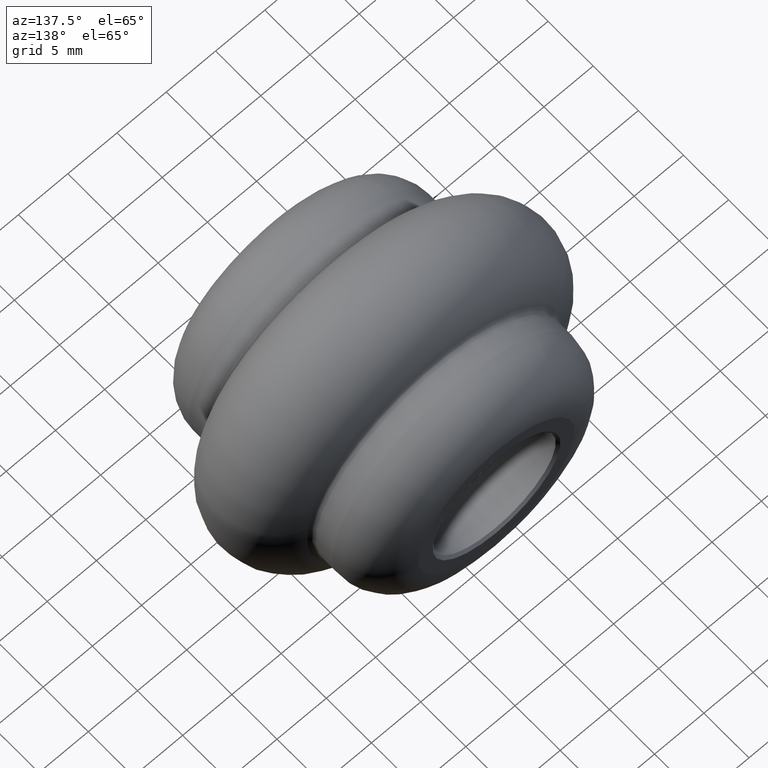
[diagram: clean part render]
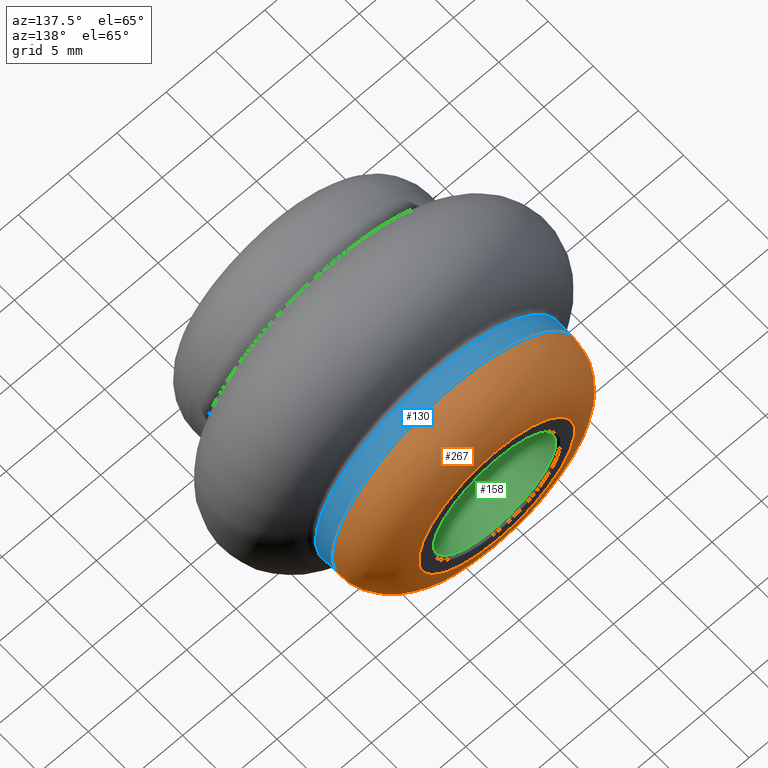
[diagram: same view with three faces highlighted in distinct colors, each labeled with its STEP entity id]
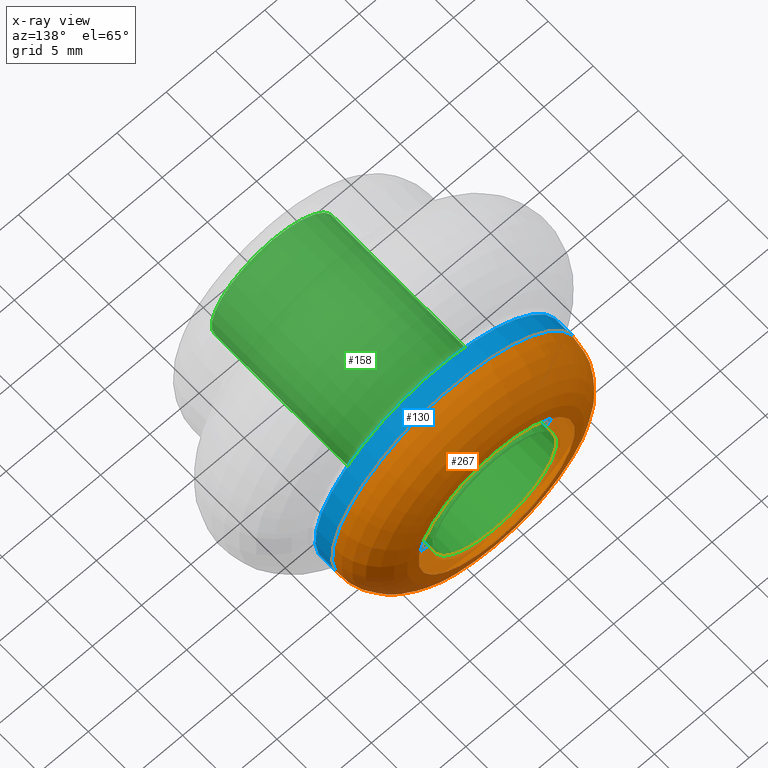
[diagram: x-ray of the same camera — body ghosted, the three highlighted faces saturated]
A machine part, auxiliary view with three faces highlighted in distinct colors.
The next image is the same camera in x-ray (body ghosted, the three faces saturated) — at least one of them is partly hidden behind the body in this view.
Their STEP definitions:

[orange] entity #267 — the highlighted toroidal blend (fillet) surface has major radius 7.937 mm and minor (blend) radius 4.563 mm.
#29 = AXIS2_PLACEMENT_3D ( 'NONE', #73, #103, #260 ) ;
#30 = VERTEX_POINT ( 'NONE', #222 ) ;
#31 = ORIENTED_EDGE ( 'NONE', *, *, #69, .T. ) ;
#36 = TOROIDAL_SURFACE ( 'NONE', #312, 7.936961005306948813, 4.563038994693052075 ) ;
#39 = CARTESIAN_POINT ( 'NONE',  ( 0.000000000000000000, 7.936961005306948813, -12.50000000000000000 ) ) ;
#60 = CIRCLE ( 'NONE', #29, 7.936961005306948813 ) ;
#61 = DIRECTION ( 'NONE',  ( 0.000000000000000000, 0.000000000000000000, -1.000000000000000000 ) ) ;
#69 = EDGE_CURVE ( 'NONE', #30, #30, #60, .T. ) ;
#73 = CARTESIAN_POINT ( 'NONE',  ( 0.000000000000000000, 12.50000000000000000, 0.000000000000000000 ) ) ;
#103 = DIRECTION ( 'NONE',  ( -0.000000000000000000, -1.000000000000000000, -0.000000000000000000 ) ) ;
#117 = ORIENTED_EDGE ( 'NONE', *, *, #199, .F. ) ;
#191 = DIRECTION ( 'NONE',  ( 0.000000000000000000, 0.000000000000000000, -1.000000000000000000 ) ) ;
#192 = AXIS2_PLACEMENT_3D ( 'NONE', #245, #215, #191 ) ;
#199 = EDGE_CURVE ( 'NONE', #231, #231, #218, .T. ) ;
#215 = DIRECTION ( 'NONE',  ( -0.000000000000000000, -1.000000000000000000, -0.000000000000000000 ) ) ;
#218 = CIRCLE ( 'NONE', #192, 12.50000000000000000 ) ;
#222 = CARTESIAN_POINT ( 'NONE',  ( 0.000000000000000000, 12.50000000000000000, -7.936961005306948813 ) ) ;
#231 = VERTEX_POINT ( 'NONE', #39 ) ;
#245 = CARTESIAN_POINT ( 'NONE',  ( 0.000000000000000000, 7.936961005306948813, 0.000000000000000000 ) ) ;
#250 = EDGE_LOOP ( 'NONE', ( #31 ) ) ;
#260 = DIRECTION ( 'NONE',  ( 0.000000000000000000, 0.000000000000000000, -1.000000000000000000 ) ) ;
#267 = ADVANCED_FACE ( 'NONE', ( #268, #324 ), #36, .T. ) ;
#268 = FACE_OUTER_BOUND ( 'NONE', #250, .T. ) ;
#269 = EDGE_LOOP ( 'NONE', ( #117 ) ) ;
#273 = CARTESIAN_POINT ( 'NONE',  ( 0.000000000000000000, 7.936961005306948813, 0.000000000000000000 ) ) ;
#298 = DIRECTION ( 'NONE',  ( -0.000000000000000000, -1.000000000000000000, -0.000000000000000000 ) ) ;
#312 = AXIS2_PLACEMENT_3D ( 'NONE', #273, #298, #61 ) ;
#324 = FACE_OUTER_BOUND ( 'NONE', #269, .T. ) ;

[blue] entity #130 — the highlighted cylindrical surface (bore or boss wall) has radius 12.5 mm, axis along (-0, -1, -0).
#7 = AXIS2_PLACEMENT_3D ( 'NONE', #213, #193, #317 ) ;
#12 = EDGE_LOOP ( 'NONE', ( #224 ) ) ;
#15 = CYLINDRICAL_SURFACE ( 'NONE', #233, 12.50000000000000000 ) ;
#16 = VERTEX_POINT ( 'NONE', #142 ) ;
#39 = CARTESIAN_POINT ( 'NONE',  ( 0.000000000000000000, 7.936961005306948813, -12.50000000000000000 ) ) ;
#86 = DIRECTION ( 'NONE',  ( 0.000000000000000000, 0.000000000000000000, -1.000000000000000000 ) ) ;
#108 = CARTESIAN_POINT ( 'NONE',  ( 0.000000000000000000, -12.50000000000000000, 0.000000000000000000 ) ) ;
#130 = ADVANCED_FACE ( 'NONE', ( #139, #144 ), #15, .T. ) ;
#139 = FACE_OUTER_BOUND ( 'NONE', #12, .T. ) ;
#142 = CARTESIAN_POINT ( 'NONE',  ( 0.000000000000000000, 6.067330549755802771, -12.50000000000000000 ) ) ;
#144 = FACE_OUTER_BOUND ( 'NONE', #294, .T. ) ;
#154 = EDGE_CURVE ( 'NONE', #16, #16, #276, .T. ) ;
#183 = ORIENTED_EDGE ( 'NONE', *, *, #199, .T. ) ;
#191 = DIRECTION ( 'NONE',  ( 0.000000000000000000, 0.000000000000000000, -1.000000000000000000 ) ) ;
#192 = AXIS2_PLACEMENT_3D ( 'NONE', #245, #215, #191 ) ;
#193 = DIRECTION ( 'NONE',  ( 0.000000000000000000, 1.000000000000000000, 0.000000000000000000 ) ) ;
#199 = EDGE_CURVE ( 'NONE', #231, #231, #218, .T. ) ;
#213 = CARTESIAN_POINT ( 'NONE',  ( 0.000000000000000000, 6.067330549755802771, 0.000000000000000000 ) ) ;
#215 = DIRECTION ( 'NONE',  ( -0.000000000000000000, -1.000000000000000000, -0.000000000000000000 ) ) ;
#218 = CIRCLE ( 'NONE', #192, 12.50000000000000000 ) ;
#219 = DIRECTION ( 'NONE',  ( -0.000000000000000000, -1.000000000000000000, -0.000000000000000000 ) ) ;
#224 = ORIENTED_EDGE ( 'NONE', *, *, #154, .T. ) ;
#231 = VERTEX_POINT ( 'NONE', #39 ) ;
#233 = AXIS2_PLACEMENT_3D ( 'NONE', #108, #219, #86 ) ;
#245 = CARTESIAN_POINT ( 'NONE',  ( 0.000000000000000000, 7.936961005306948813, 0.000000000000000000 ) ) ;
#276 = CIRCLE ( 'NONE', #7, 12.50000000000000000 ) ;
#294 = EDGE_LOOP ( 'NONE', ( #183 ) ) ;
#317 = DIRECTION ( 'NONE',  ( 0.000000000000000000, 0.000000000000000000, -1.000000000000000000 ) ) ;

[green] entity #158 — the highlighted cylindrical surface (bore or boss wall) has radius 6.25 mm, axis along (-0, 1, -0).
#4 = CIRCLE ( 'NONE', #266, 6.250000000000000000 ) ;
#5 = DIRECTION ( 'NONE',  ( 0.000000000000000000, 0.000000000000000000, 1.000000000000000000 ) ) ;
#17 = FACE_OUTER_BOUND ( 'NONE', #307, .T. ) ;
#20 = AXIS2_PLACEMENT_3D ( 'NONE', #164, #184, #5 ) ;
#23 = ORIENTED_EDGE ( 'NONE', *, *, #149, .T. ) ;
#52 = FACE_OUTER_BOUND ( 'NONE', #311, .T. ) ;
#54 = DIRECTION ( 'NONE',  ( 0.000000000000000000, 0.000000000000000000, -1.000000000000000000 ) ) ;
#66 = AXIS2_PLACEMENT_3D ( 'NONE', #106, #185, #107 ) ;
#81 = CARTESIAN_POINT ( 'NONE',  ( 0.000000000000000000, -12.24999999999999645, 0.000000000000000000 ) ) ;
#106 = CARTESIAN_POINT ( 'NONE',  ( 0.000000000000000000, 12.24999999999999289, 0.000000000000000000 ) ) ;
#107 = DIRECTION ( 'NONE',  ( 0.000000000000000000, 0.000000000000000000, 1.000000000000000000 ) ) ;
#113 = CYLINDRICAL_SURFACE ( 'NONE', #20, 6.250000000000000000 ) ;
#133 = DIRECTION ( 'NONE',  ( -0.000000000000000000, -1.000000000000000000, -0.000000000000000000 ) ) ;
#135 = EDGE_CURVE ( 'NONE', #208, #208, #4, .T. ) ;
#149 = EDGE_CURVE ( 'NONE', #200, #200, #300, .T. ) ;
#158 = ADVANCED_FACE ( 'NONE', ( #52, #17 ), #113, .F. ) ;
#164 = CARTESIAN_POINT ( 'NONE',  ( 0.000000000000000000, -12.50000000000000000, 0.000000000000000000 ) ) ;
#184 = DIRECTION ( 'NONE',  ( -0.000000000000000000, 1.000000000000000000, -0.000000000000000000 ) ) ;
#185 = DIRECTION ( 'NONE',  ( 0.000000000000000000, 1.000000000000000000, 0.000000000000000000 ) ) ;
#200 = VERTEX_POINT ( 'NONE', #249 ) ;
#208 = VERTEX_POINT ( 'NONE', #321 ) ;
#240 = ORIENTED_EDGE ( 'NONE', *, *, #135, .T. ) ;
#249 = CARTESIAN_POINT ( 'NONE',  ( 0.000000000000000000, 12.24999999999999289, 6.250000000000000000 ) ) ;
#266 = AXIS2_PLACEMENT_3D ( 'NONE', #81, #133, #54 ) ;
#300 = CIRCLE ( 'NONE', #66, 6.250000000000000000 ) ;
#307 = EDGE_LOOP ( 'NONE', ( #240 ) ) ;
#311 = EDGE_LOOP ( 'NONE', ( #23 ) ) ;
#321 = CARTESIAN_POINT ( 'NONE',  ( 0.000000000000000000, -12.24999999999999645, -6.250000000000000000 ) ) ;